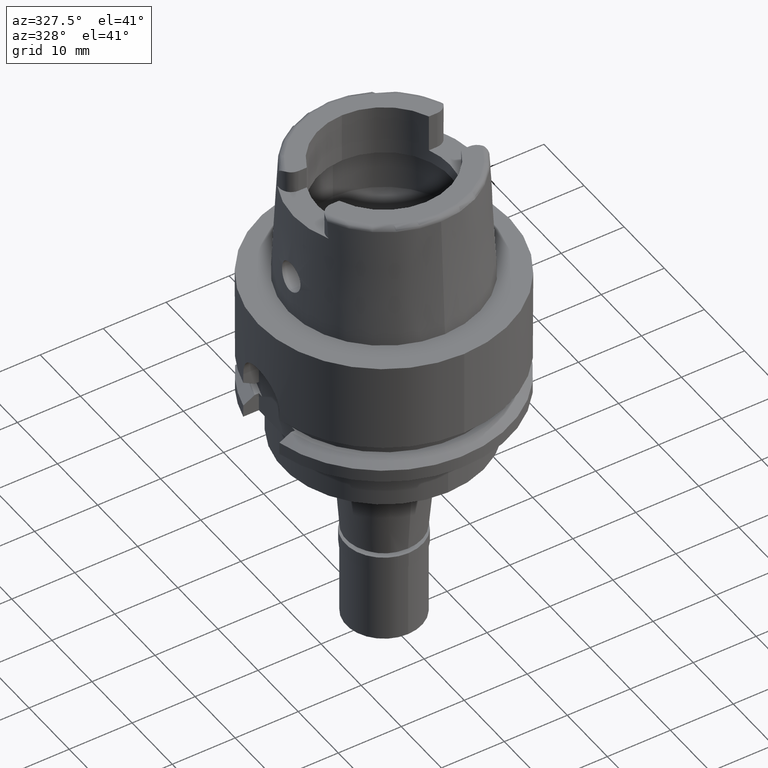
[diagram: clean part render]
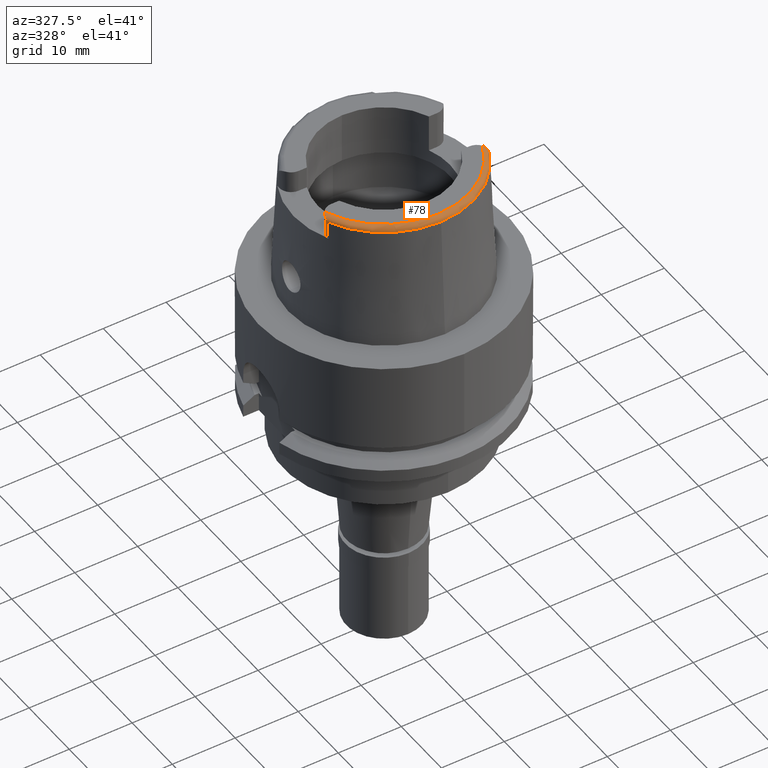
[diagram: same view with one face highlighted and labeled with its STEP entity id]
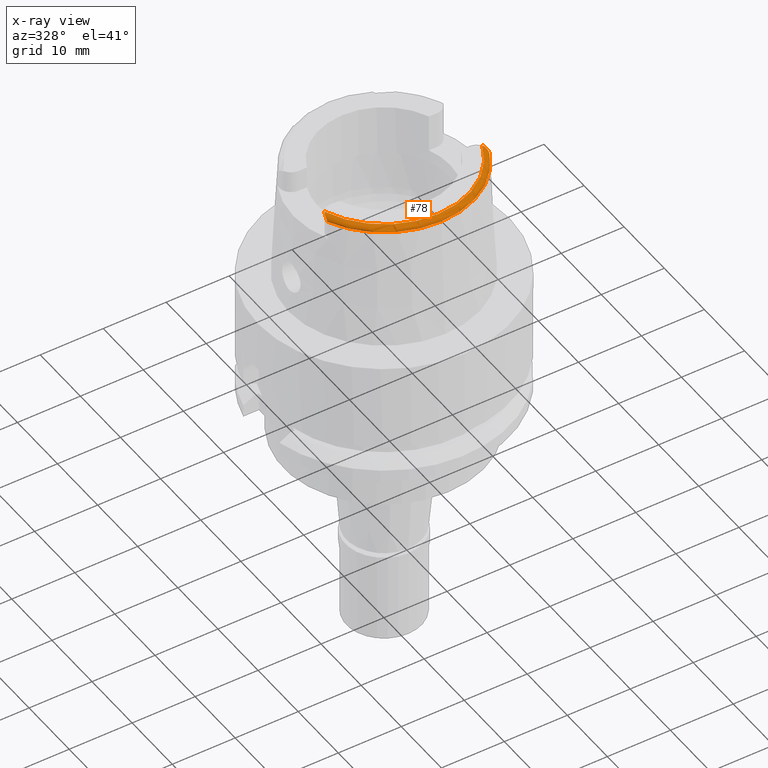
[diagram: x-ray of the same camera — body ghosted, the highlighted face saturated]
A machine part, auxiliary view. The second image highlights one B-rep face of the part: STEP entity #78.
The next image is the same camera in x-ray: the body ghosted, the highlighted face saturated — about 0% of this face is hidden behind the body in this view.
In plain terms, the highlighted toroidal blend (fillet) surface has major radius 13.439 mm and minor (blend) radius 0.8 mm.
Its self-contained STEP definition (entity closure, byte-faithful):
#33 = B_SPLINE_CURVE_WITH_KNOTS ( 'NONE', 3,
 ( #3095, #2653, #4376, #2221, #3039, #3406, #1407, #625, #4718, #599, #542, #2248 ),
 .UNSPECIFIED., .F., .F.,
 ( 4, 2, 2, 2, 2, 4 ),
 ( 0.0000000000000000000, 0.1250000000000008049, 0.2500000000000016098, 0.3750000000000024425, 0.5000000000000032196, 1.000000000000000000 ),
 .UNSPECIFIED. ) ;
#78 = ADVANCED_FACE ( 'NONE', ( #3037 ), #5212, .T. ) ;
#81 = CIRCLE ( 'NONE', #5321, 13.43897535254000175 ) ;
#92 = CARTESIAN_POINT ( 'NONE',  ( 12.87648542707335686, -5.755265694043520064, 19.65150377189479869 ) ) ;
#116 = DIRECTION ( 'NONE',  ( -0.001485959642573941777, -0.9999988959613608230, 0.0000000000000000000 ) ) ;
#121 = CARTESIAN_POINT ( 'NONE',  ( 12.88000000000000078, -5.904999999999999361, 19.52698079989999869 ) ) ;
#190 = CARTESIAN_POINT ( 'NONE',  ( -12.88000000000000078, -5.904999999999999361, 19.52698079989999869 ) ) ;
#194 = CARTESIAN_POINT ( 'NONE',  ( -12.88000032454999833, -6.068406996254999797, 19.23995952477000060 ) ) ;
#336 = EDGE_CURVE ( 'NONE', #1242, #2491, #1003, .T. ) ;
#354 = B_SPLINE_CURVE_WITH_KNOTS ( 'NONE', 3,
 ( #3812, #3368, #1286, #2950, #5067, #3035, #1811, #3004, #2980, #3484, #503, #92, #4287, #121 ),
 .UNSPECIFIED., .F., .F.,
 ( 4, 2, 2, 2, 2, 2, 4 ),
 ( 0.0000000000000000000, 0.2499999999999983902, 0.3749999999999993894, 0.5000000000000004441, 0.6250000000000015543, 0.7500000000000024425, 1.000000000000000000 ),
 .UNSPECIFIED. ) ;
#360 = DIRECTION ( 'NONE',  ( 0.9046212760392207120, -0.4262163147243098749, 0.0000000000000000000 ) ) ;
#387 = ORIENTED_EDGE ( 'NONE', *, *, #1451, .F. ) ;
#503 = CARTESIAN_POINT ( 'NONE',  ( 12.85772318015178328, -5.612478093082795993, 19.74140660183945428 ) ) ;
#517 = CARTESIAN_POINT ( 'NONE',  ( 12.88000000000000078, -5.904999999999999361, 19.52698079989999869 ) ) ;
#542 = CARTESIAN_POINT ( 'NONE',  ( -12.64793642181546041, -4.981265245791342444, 19.99999999999999289 ) ) ;
#569 = DIRECTION ( 'NONE',  ( -0.001485959642573941777, -0.9999988959613608230, 0.0000000000000000000 ) ) ;
#598 = ORIENTED_EDGE ( 'NONE', *, *, #2572, .F. ) ;
#599 = CARTESIAN_POINT ( 'NONE',  ( -12.73810532772071547, -5.158986509624324590, 19.95696387642465552 ) ) ;
#625 = CARTESIAN_POINT ( 'NONE',  ( -12.82737725561087494, -5.460302291060784796, 19.82415168311250753 ) ) ;
#648 = DIRECTION ( 'NONE',  ( 0.0000000000000000000, 0.0000000000000000000, -1.000000000000000000 ) ) ;
#739 = CARTESIAN_POINT ( 'NONE',  ( -12.87999984931999897, -6.055760598661999339, 19.30904358228000106 ) ) ;
#769 = CARTESIAN_POINT ( 'NONE',  ( -12.88000000000000078, -5.930847090185999981, 19.50292805455000078 ) ) ;
#770 = EDGE_LOOP ( 'NONE', ( #1825, #3070, #5345, #598, #4831, #387, #904 ) ) ;
#817 = CARTESIAN_POINT ( 'NONE',  ( 0.0000000000000000000, 1.459778984583999657E-14, 19.23995141520000018 ) ) ;
#820 = CARTESIAN_POINT ( 'NONE',  ( -12.88000004057000147, -6.024672645495000367, 19.38121532727999963 ) ) ;
#904 = ORIENTED_EDGE ( 'NONE', *, *, #2929, .F. ) ;
#940 = CARTESIAN_POINT ( 'NONE',  ( -12.54148453352999937, -4.828791175990000184, 20.00000000000000000 ) ) ;
#948 = CARTESIAN_POINT ( 'NONE',  ( 12.88000354954000137, -6.055748476515001144, 19.30899681854999983 ) ) ;
#998 = VERTEX_POINT ( 'NONE', #4277 ) ;
#1003 = CIRCLE ( 'NONE', #2034, 14.23797715756000315 ) ;
#1036 = CARTESIAN_POINT ( 'NONE',  ( 12.87999235482999794, -6.065763379305000313, 19.26281173770999899 ) ) ;
#1242 = VERTEX_POINT ( 'NONE', #5362 ) ;
#1286 = CARTESIAN_POINT ( 'NONE',  ( 12.64382867775909780, -4.987442438957272905, 19.98924266819237516 ) ) ;
#1289 = VERTEX_POINT ( 'NONE', #2874 ) ;
#1304 = DIRECTION ( 'NONE',  ( 0.0000000000000000000, 0.0000000000000000000, -1.000000000000000000 ) ) ;
#1407 = CARTESIAN_POINT ( 'NONE',  ( -12.84902278112003948, -5.561229085641577363, 19.77101011336105074 ) ) ;
#1437 = CARTESIAN_POINT ( 'NONE',  ( 12.88000000000000078, -5.930851290210999771, 19.50292414608999891 ) ) ;
#1451 = EDGE_CURVE ( 'NONE', #2090, #1534, #33, .T. ) ;
#1534 = VERTEX_POINT ( 'NONE', #940 ) ;
#1606 = CARTESIAN_POINT ( 'NONE',  ( 0.0000000000000000000, 1.459778984583999657E-14, 19.23995141520000018 ) ) ;
#1738 = CIRCLE ( 'NONE', #2609, 14.23797715756000315 ) ;
#1811 = CARTESIAN_POINT ( 'NONE',  ( 12.78289310306433890, -5.306177866069411664, 19.89320569962336194 ) ) ;
#1825 = ORIENTED_EDGE ( 'NONE', *, *, #4266, .F. ) ;
#1894 = CARTESIAN_POINT ( 'NONE',  ( 0.0000000000000000000, 1.459778984583999657E-14, 20.00000000000000000 ) ) ;
#2034 = AXIS2_PLACEMENT_3D ( 'NONE', #1606, #4196, #360 ) ;
#2090 = VERTEX_POINT ( 'NONE', #190 ) ;
#2221 = CARTESIAN_POINT ( 'NONE',  ( -12.87420937492919037, -5.751978130906750586, 19.65112294400429249 ) ) ;
#2248 = CARTESIAN_POINT ( 'NONE',  ( -12.54148453352999937, -4.828791175990000184, 20.00000000000000000 ) ) ;
#2390 = CARTESIAN_POINT ( 'NONE',  ( -12.87999998840999893, -5.975911133023999788, 19.45435404003999835 ) ) ;
#2471 = CARTESIAN_POINT ( 'NONE',  ( -12.88000032454999833, -6.068406996254999797, 19.23995952477000060 ) ) ;
#2491 = VERTEX_POINT ( 'NONE', #3841 ) ;
#2572 = EDGE_CURVE ( 'NONE', #998, #1289, #354, .T. ) ;
#2609 = AXIS2_PLACEMENT_3D ( 'NONE', #817, #1304, #4588 ) ;
#2626 = CARTESIAN_POINT ( 'NONE',  ( 0.0000000000000000000, 1.459778984583999657E-14, 19.19999999999999929 ) ) ;
#2653 = CARTESIAN_POINT ( 'NONE',  ( -12.88000000000000256, -5.871133661672431892, 19.55849608482519741 ) ) ;
#2783 = CARTESIAN_POINT ( 'NONE',  ( -12.88000000000000078, -5.904999999999999361, 19.52698079989999869 ) ) ;
#2841 = AXIS2_PLACEMENT_3D ( 'NONE', #2626, #4345, #569 ) ;
#2874 = CARTESIAN_POINT ( 'NONE',  ( 12.88000000000000078, -5.904999999999999361, 19.52698079989999869 ) ) ;
#2929 = EDGE_CURVE ( 'NONE', #4473, #2090, #3217, .T. ) ;
#2950 = CARTESIAN_POINT ( 'NONE',  ( 12.70893950900865121, -5.119922357685718239, 19.95697067276951486 ) ) ;
#2980 = CARTESIAN_POINT ( 'NONE',  ( 12.82736375036354914, -5.460244976256015015, 19.82418207746542294 ) ) ;
#3004 = CARTESIAN_POINT ( 'NONE',  ( 12.81422680653282953, -5.409140282441459391, 19.84861833699372369 ) ) ;
#3035 = CARTESIAN_POINT ( 'NONE',  ( 12.76646100801611361, -5.259575576992769896, 19.91125201258712707 ) ) ;
#3037 = FACE_OUTER_BOUND ( 'NONE', #770, .T. ) ;
#3039 = CARTESIAN_POINT ( 'NONE',  ( -12.87040823858572480, -5.709007116308010055, 19.68062838608387111 ) ) ;
#3070 = ORIENTED_EDGE ( 'NONE', *, *, #336, .F. ) ;
#3095 = CARTESIAN_POINT ( 'NONE',  ( -12.88000000000000078, -5.904999999999999361, 19.52698079989999869 ) ) ;
#3217 = B_SPLINE_CURVE_WITH_KNOTS ( 'NONE', 3,
 ( #2471, #4106, #739, #820, #2390, #769, #2783 ),
 .UNSPECIFIED., .F., .F.,
 ( 4, 1, 1, 1, 4 ),
 ( 0.0000000000000000000, 0.2500000000000000000, 0.5000000000000000000, 0.7500000000000000000, 1.000000000000000000 ),
 .UNSPECIFIED. ) ;
#3368 = CARTESIAN_POINT ( 'NONE',  ( 12.59469783598460246, -4.905010103838397306, 19.99999999999999645 ) ) ;
#3406 = CARTESIAN_POINT ( 'NONE',  ( -12.85753473334657571, -5.611052889386018094, 19.74230545395532488 ) ) ;
#3484 = CARTESIAN_POINT ( 'NONE',  ( 12.84901817810632529, -5.561201971616121398, 19.77102440198188305 ) ) ;
#3485 = B_SPLINE_CURVE_WITH_KNOTS ( 'NONE', 3,
 ( #517, #1437, #3855, #4780, #948, #1036, #3882 ),
 .UNSPECIFIED., .F., .F.,
 ( 4, 1, 1, 1, 4 ),
 ( 0.0000000000000000000, 0.2500000000000000000, 0.5000000000000000000, 0.7500000000000000000, 1.000000000000000000 ),
 .UNSPECIFIED. ) ;
#3812 = CARTESIAN_POINT ( 'NONE',  ( 12.54148453352999937, -4.828791175990000184, 20.00000000000000000 ) ) ;
#3841 = CARTESIAN_POINT ( 'NONE',  ( 0.0000000000000000000, -14.23797715755999782, 19.23995141520000018 ) ) ;
#3855 = CARTESIAN_POINT ( 'NONE',  ( 12.88000027304000028, -5.975918546621999283, 19.45433999072000120 ) ) ;
#3882 = CARTESIAN_POINT ( 'NONE',  ( 12.87999235482999794, -6.068467499471000615, 19.23976188443000268 ) ) ;
#4106 = CARTESIAN_POINT ( 'NONE',  ( -12.88000032454999833, -6.065738113679999266, 19.26270901368999944 ) ) ;
#4187 = EDGE_CURVE ( 'NONE', #998, #1534, #81, .T. ) ;
#4196 = DIRECTION ( 'NONE',  ( 0.0000000000000000000, 0.0000000000000000000, -1.000000000000000000 ) ) ;
#4266 = EDGE_CURVE ( 'NONE', #2491, #4473, #1738, .T. ) ;
#4277 = CARTESIAN_POINT ( 'NONE',  ( 12.54148453352999937, -4.828791175990000184, 20.00000000000000000 ) ) ;
#4287 = CARTESIAN_POINT ( 'NONE',  ( 12.88000000000000078, -5.837260512371339694, 19.59001770790883867 ) ) ;
#4345 = DIRECTION ( 'NONE',  ( 0.0000000000000000000, 0.0000000000000000000, -1.000000000000000000 ) ) ;
#4376 = CARTESIAN_POINT ( 'NONE',  ( -12.87909443458204173, -5.833721816689231510, 19.58962757063109095 ) ) ;
#4473 = VERTEX_POINT ( 'NONE', #194 ) ;
#4588 = DIRECTION ( 'NONE',  ( -0.001485959642573941343, -0.9999988959613608230, 0.0000000000000000000 ) ) ;
#4718 = CARTESIAN_POINT ( 'NONE',  ( -12.81369175352366163, -5.407386832640193930, 19.84937356748628190 ) ) ;
#4780 = CARTESIAN_POINT ( 'NONE',  ( 12.87999904434999898, -6.024677557665000016, 19.38122373493000339 ) ) ;
#4831 = ORIENTED_EDGE ( 'NONE', *, *, #4187, .T. ) ;
#4881 = EDGE_CURVE ( 'NONE', #1289, #1242, #3485, .T. ) ;
#5067 = CARTESIAN_POINT ( 'NONE',  ( 12.72921038207898015, -5.165548424056185972, 19.94352400800999092 ) ) ;
#5212 = TOROIDAL_SURFACE ( 'NONE', #2841, 13.43897535253999997, 0.8000000000000000444 ) ;
#5321 = AXIS2_PLACEMENT_3D ( 'NONE', #1894, #648, #116 ) ;
#5345 = ORIENTED_EDGE ( 'NONE', *, *, #4881, .F. ) ;
#5362 = CARTESIAN_POINT ( 'NONE',  ( 12.87999235482999794, -6.068467499471000615, 19.23976188443000268 ) ) ;